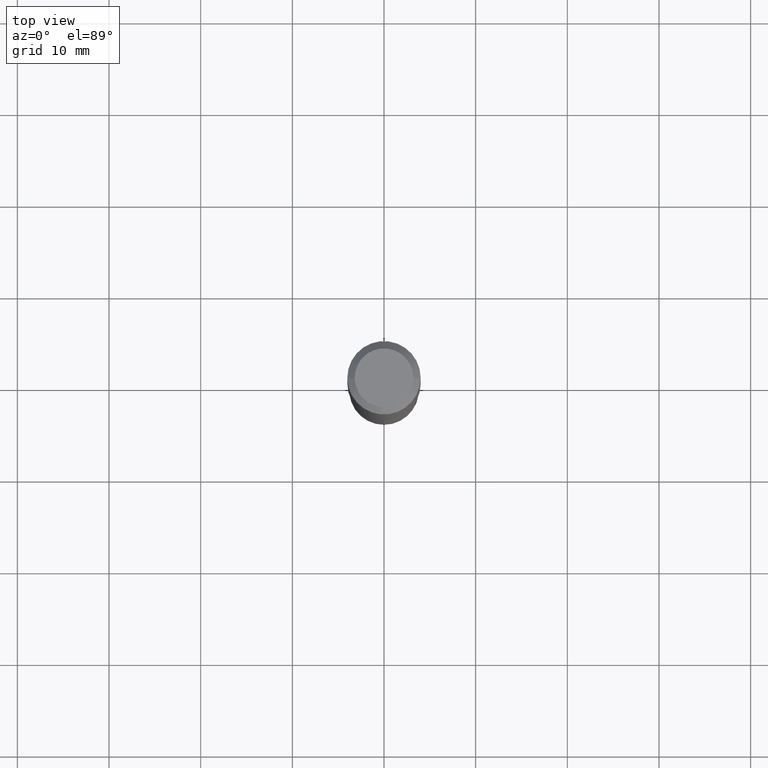
[diagram: clean part render]
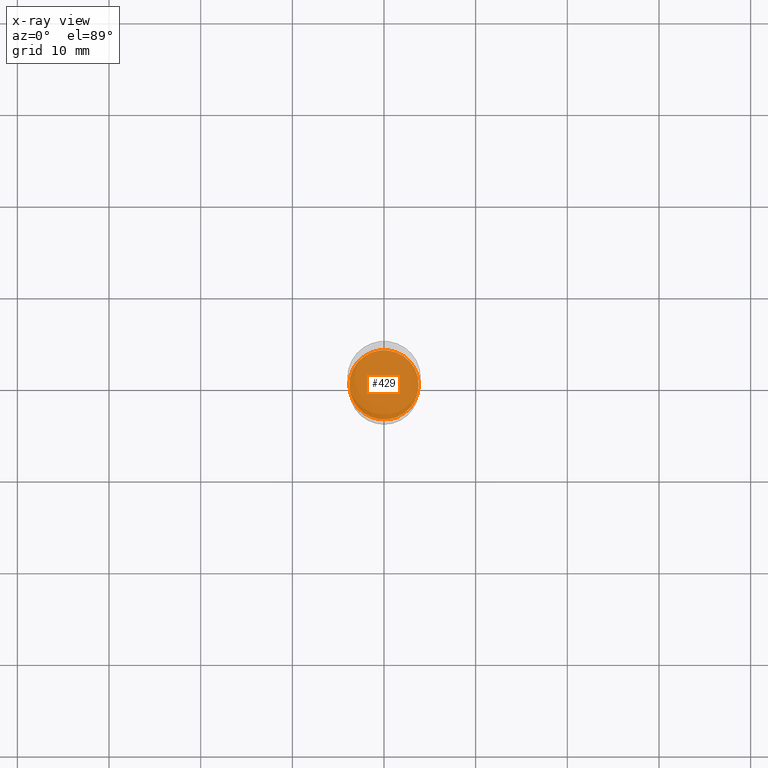
[diagram: x-ray — body ghosted, one internal face saturated and labeled with its STEP entity id]
A machine part, top view, then the same camera in x-ray: the body is ghosted and one INTERNAL B-rep face — a face not visible from any outside direction — is saturated and labeled: STEP entity #429.
In plain terms, the highlighted planar face has unit normal (-0, 0, 1).
Its self-contained STEP definition (entity closure, byte-faithful):
#8 = DIRECTION ( 'NONE',  ( -2.438088387897960049E-29, 3.491481338843145188E-15, 1.000000000000000000 ) ) ;
#14 = EDGE_CURVE ( 'NONE', #126, #358, #354, .T. ) ;
#53 = EDGE_CURVE ( 'NONE', #358, #126, #399, .T. ) ;
#82 = AXIS2_PLACEMENT_3D ( 'NONE', #258, #375, #186 ) ;
#91 = ORIENTED_EDGE ( 'NONE', *, *, #14, .F. ) ;
#126 = VERTEX_POINT ( 'NONE', #472 ) ;
#184 = AXIS2_PLACEMENT_3D ( 'NONE', #449, #411, #257 ) ;
#186 = DIRECTION ( 'NONE',  ( 1.000000000000000000, -6.982962677686265133E-15, 0.000000000000000000 ) ) ;
#224 = AXIS2_PLACEMENT_3D ( 'NONE', #345, #8, #421 ) ;
#257 = DIRECTION ( 'NONE',  ( 1.000000000000000000, -6.982962677686265133E-15, 0.000000000000000000 ) ) ;
#258 = CARTESIAN_POINT ( 'NONE',  ( 4.390105600863556886E-29, -6.267907299491213327E-15, -1.795199999999999685 ) ) ;
#261 = EDGE_LOOP ( 'NONE', ( #469, #91 ) ) ;
#320 = FACE_OUTER_BOUND ( 'NONE', #261, .T. ) ;
#345 = CARTESIAN_POINT ( 'NONE',  ( 6.686949327300660051E-29, -2.978696355006919031E-15, -1.795200000000000129 ) ) ;
#354 = CIRCLE ( 'NONE', #82, 0.1491000000000000103 ) ;
#358 = VERTEX_POINT ( 'NONE', #415 ) ;
#375 = DIRECTION ( 'NONE',  ( -2.445468806185136597E-29, 3.491481338843145583E-15, 1.000000000000000000 ) ) ;
#380 = PLANE ( 'NONE',  #224 ) ;
#399 = CIRCLE ( 'NONE', #184, 0.1491000000000000103 ) ;
#411 = DIRECTION ( 'NONE',  ( -2.445468806185136597E-29, 3.491481338843145583E-15, 1.000000000000000000 ) ) ;
#415 = CARTESIAN_POINT ( 'NONE',  ( 0.1491000000000000103, -7.309067034734236709E-15, -1.795199999999999685 ) ) ;
#421 = DIRECTION ( 'NONE',  ( 1.000000000000000000, -6.982962677686265922E-15, 4.876176775795935793E-29 ) ) ;
#429 = ADVANCED_FACE ( 'NONE', ( #320 ), #380, .F. ) ;
#449 = CARTESIAN_POINT ( 'NONE',  ( 4.390105600863556886E-29, -6.267907299491213327E-15, -1.795199999999999685 ) ) ;
#469 = ORIENTED_EDGE ( 'NONE', *, *, #53, .F. ) ;
#472 = CARTESIAN_POINT ( 'NONE',  ( -0.1491000000000000103, -5.205838853298793464E-15, -1.795199999999999685 ) ) ;